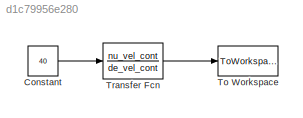
MODEL slx_d1c79956e280
KIND model
CONFIG AbsTol = auto
CONFIG FixedStep = 0.02
CONFIG MaxStep = auto
CONFIG MinStep = auto
CONFIG RelTol = 1e-3
CONFIG SampleTimeConstraint = Unconstrained
CONFIG Solver = ode4
CONFIG SolverMode = Auto
CONFIG SolverName = ode4
CONFIG StartTime = 0.0
CONFIG StopTime = 1.98
BLOCK [Constant] Constant
  Value = 40
BLOCK [ToWorkspace] To Workspace
  FixptAsFi = on
  MaxDataPoints = inf
  Ports = [1]
  SampleTime = -1
  Save2DSignal = 3-D array (concatenate along third dimension)
  VariableName = simu_vel_cont
BLOCK [TransferFcn] Transfer Fcn
  Denominator = de_vel_cont
  Numerator = nu_vel_cont
LINE Constant:1 -> Transfer Fcn:1
LINE Transfer Fcn:1 -> To Workspace:1
